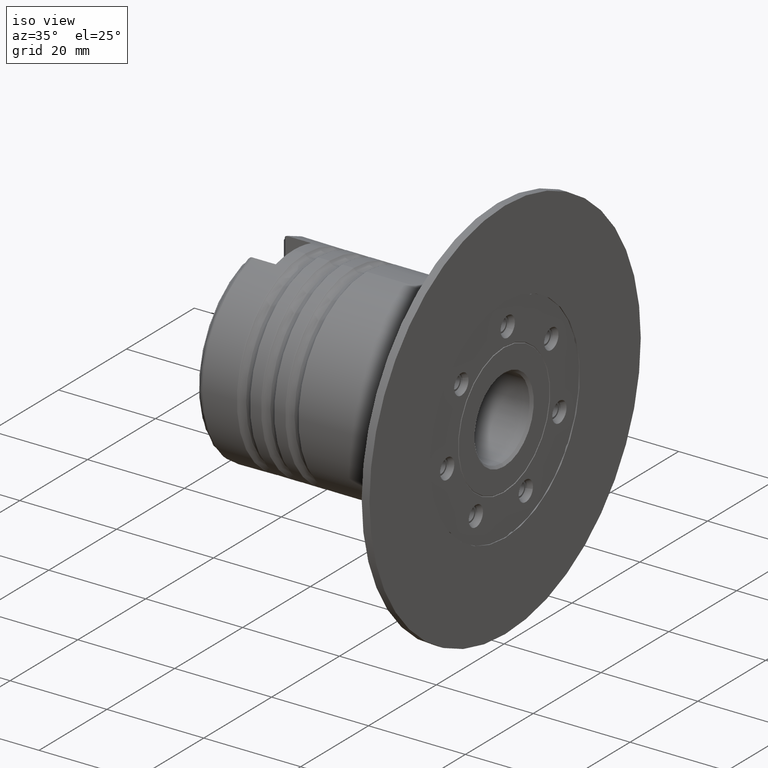
[diagram: clean part render]
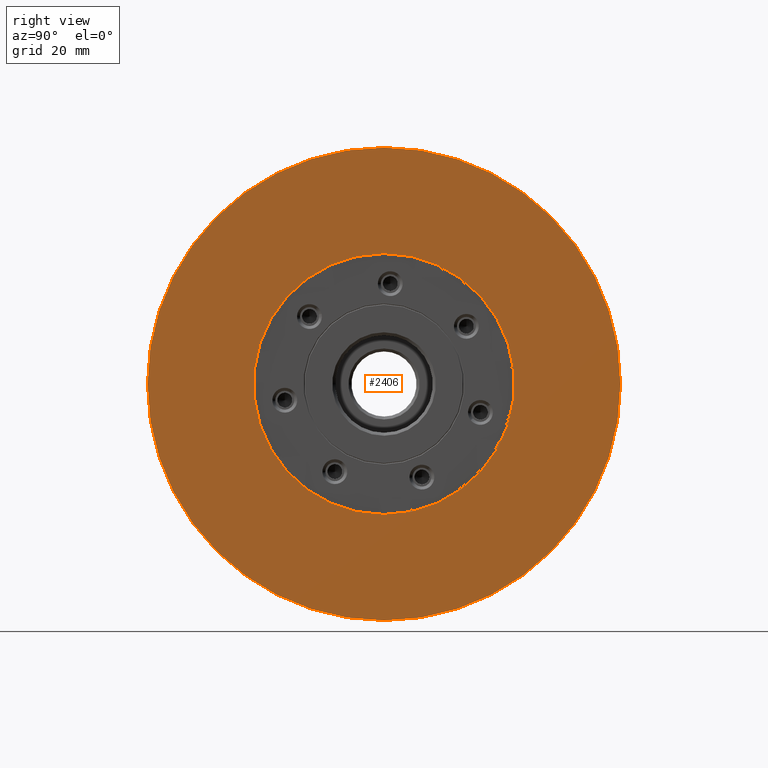
[diagram: tour spotlight — one face highlighted and labeled with its STEP entity id]
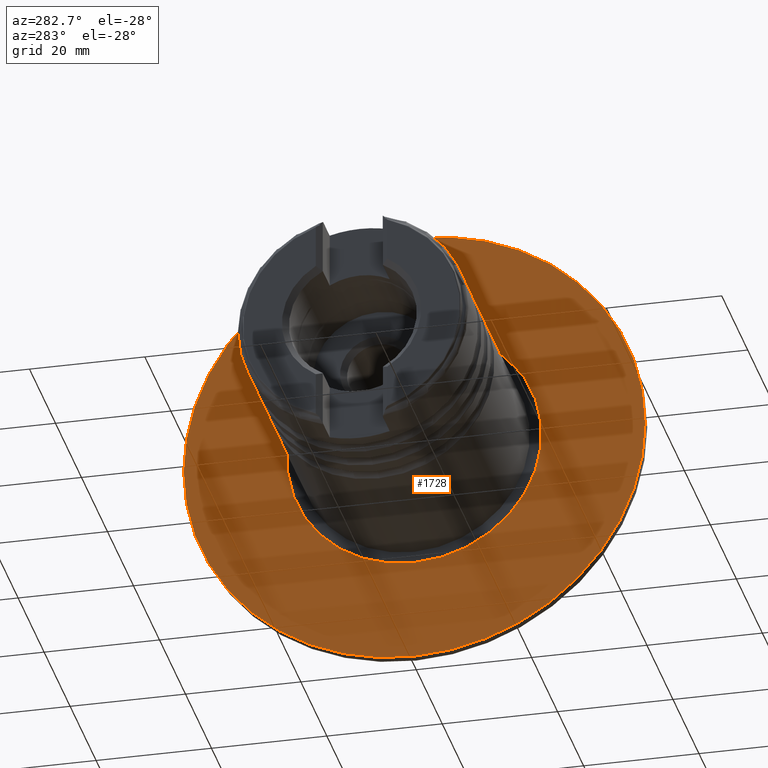
[diagram: tour spotlight — one face highlighted and labeled with its STEP entity id]
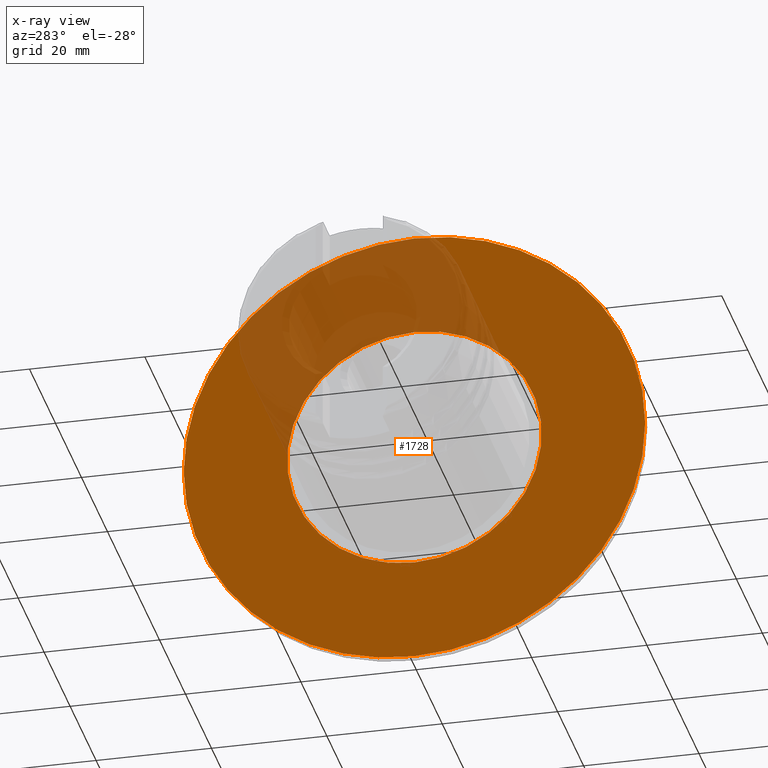
[diagram: x-ray of the same camera — body ghosted, this tour face saturated]
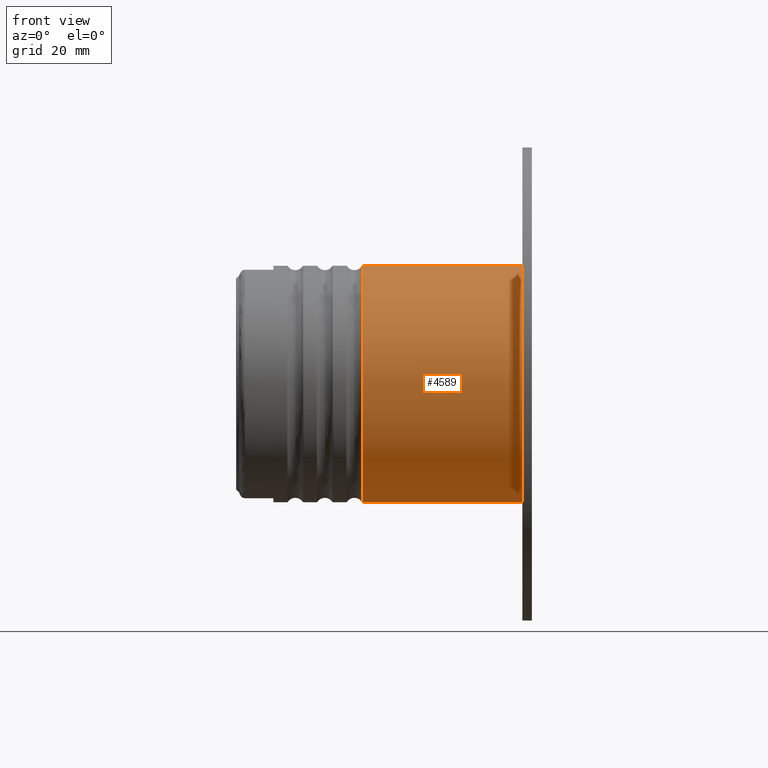
[diagram: tour spotlight — one face highlighted and labeled with its STEP entity id]
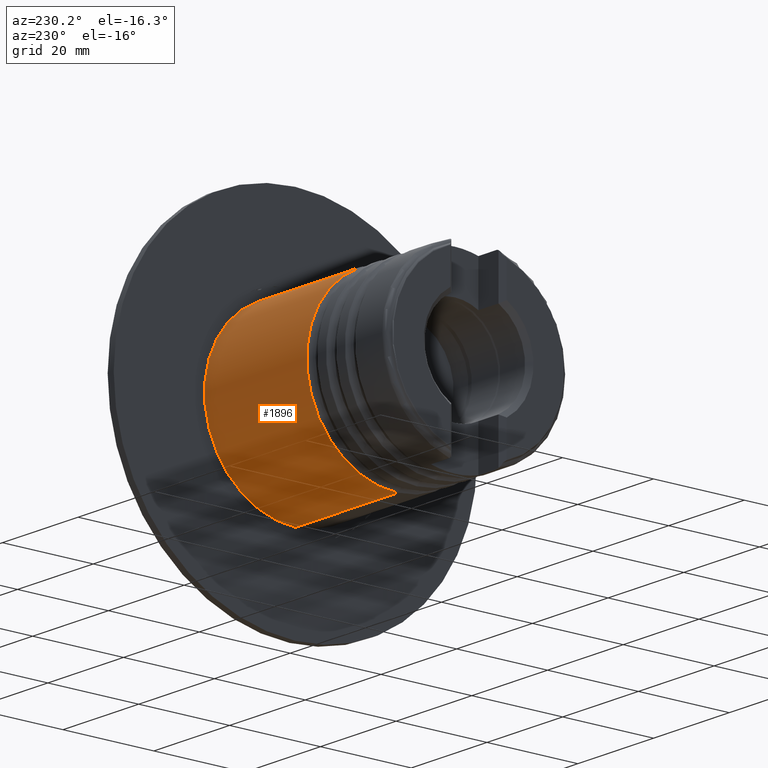
[diagram: tour spotlight — one face highlighted and labeled with its STEP entity id]
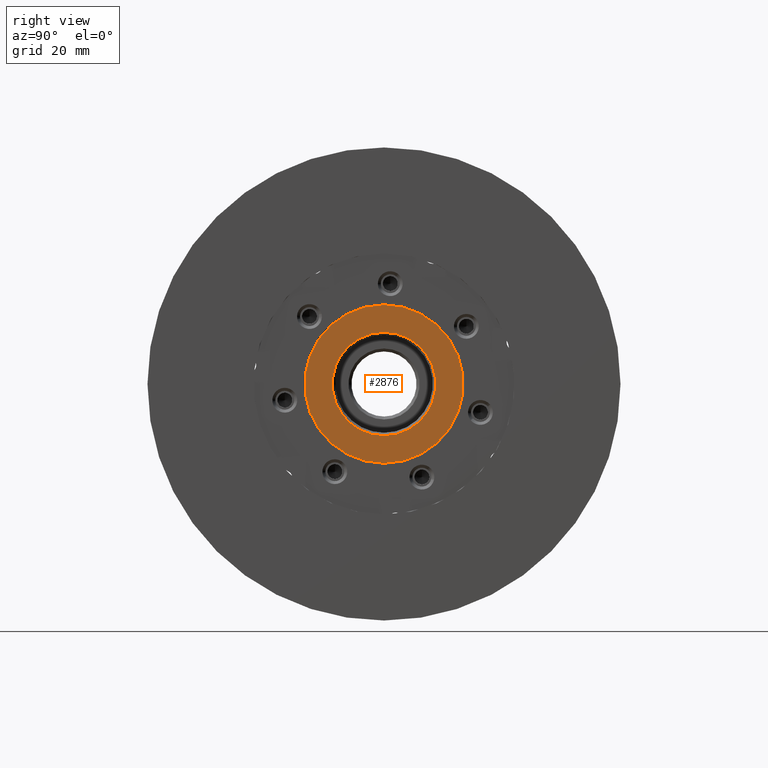
[diagram: tour spotlight — one face highlighted and labeled with its STEP entity id]
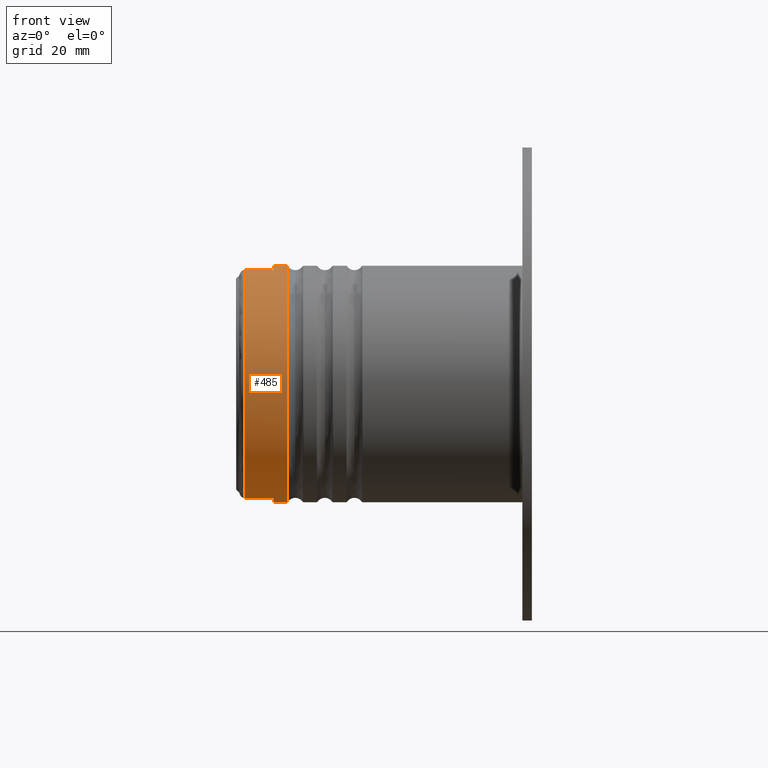
[diagram: tour spotlight — one face highlighted and labeled with its STEP entity id]
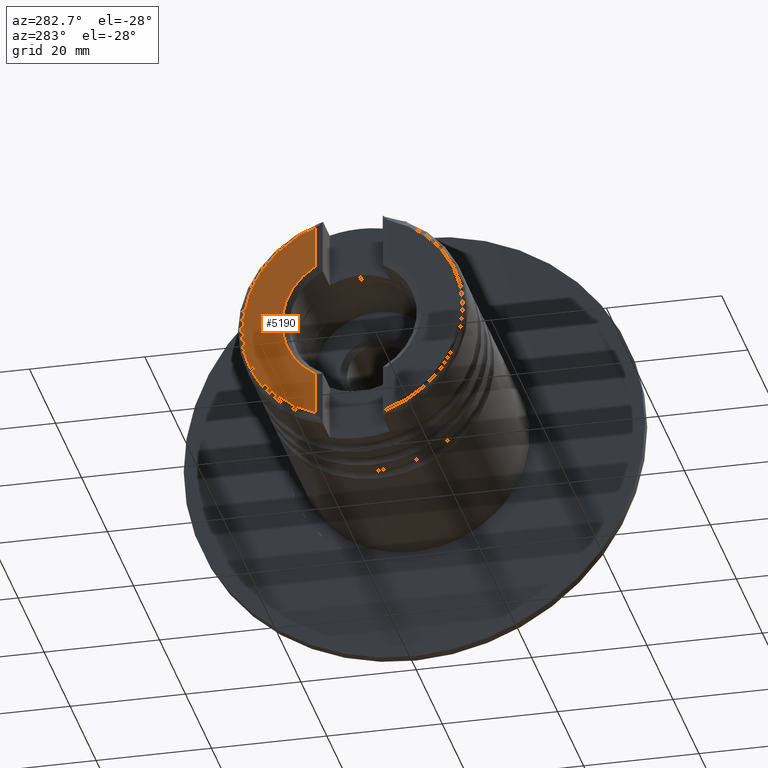
[diagram: tour spotlight — one face highlighted and labeled with its STEP entity id]
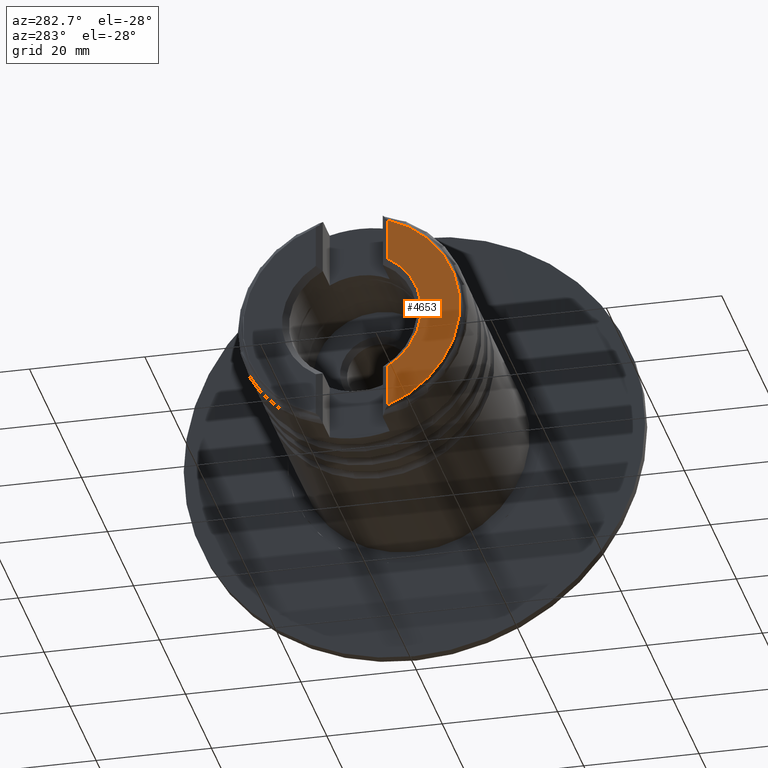
[diagram: tour spotlight — one face highlighted and labeled with its STEP entity id]
A machine part: a face-by-face anatomy tour. The part has 167 B-rep faces; the first image is the clean iso view, then the 8 largest visible faces are spotlighted one at a time (largest first), each with its STEP entity span.

Face 1 — right view, entity #2406. In plain terms, the highlighted planar face has unit normal (-1, 0, 0).
Definition (entity closure, byte-faithful):
#5 = DIRECTION ( 'NONE',  ( 1.000000000000000000, -0.0000000000000000000, -0.0000000000000000000 ) ) ;
#128 = DIRECTION ( 'NONE',  ( 1.000000000000000000, -0.0000000000000000000, -0.0000000000000000000 ) ) ;
#264 = CARTESIAN_POINT ( 'NONE',  ( 0.2000513399999931385, -40.00000000000000000, 0.0000000000000000000 ) ) ;
#310 = CARTESIAN_POINT ( 'NONE',  ( 0.2000513399999931385, 4.898587196589413026E-15, 40.00000000000000000 ) ) ;
#384 = DIRECTION ( 'NONE',  ( 1.000000000000000000, -0.0000000000000000000, -0.0000000000000000000 ) ) ;
#488 = CARTESIAN_POINT ( 'NONE',  ( 0.2000513399999931385, 0.0000000000000000000, -22.05936522491092688 ) ) ;
#514 = CIRCLE ( 'NONE', #913, 40.00000000000000000 ) ;
#547 = VERTEX_POINT ( 'NONE', #2277 ) ;
#620 = DIRECTION ( 'NONE',  ( 0.0000000000000000000, 0.0000000000000000000, -1.000000000000000000 ) ) ;
#698 = AXIS2_PLACEMENT_3D ( 'NONE', #264, #4040, #4481 ) ;
#819 = EDGE_CURVE ( 'NONE', #5009, #547, #1317, .T. ) ;
#913 = AXIS2_PLACEMENT_3D ( 'NONE', #2948, #5, #2926 ) ;
#1317 = CIRCLE ( 'NONE', #4471, 22.05936522491092688 ) ;
#1558 = AXIS2_PLACEMENT_3D ( 'NONE', #3105, #3932, #620 ) ;
#1891 = EDGE_CURVE ( 'NONE', #4624, #4226, #514, .T. ) ;
#1940 = FACE_BOUND ( 'NONE', #2709, .T. ) ;
#2098 = AXIS2_PLACEMENT_3D ( 'NONE', #2881, #384, #2443 ) ;
#2154 = PLANE ( 'NONE',  #698 ) ;
#2277 = CARTESIAN_POINT ( 'NONE',  ( 0.2000513399999931385, 2.701493101390960053E-15, 22.05936522491092688 ) ) ;
#2406 = ADVANCED_FACE ( 'NONE', ( #1940, #4847 ), #2154, .F. ) ;
#2443 = DIRECTION ( 'NONE',  ( 0.0000000000000000000, 0.0000000000000000000, -1.000000000000000000 ) ) ;
#2709 = EDGE_LOOP ( 'NONE', ( #2965, #4092 ) ) ;
#2881 = CARTESIAN_POINT ( 'NONE',  ( 0.2000513399999931385, 0.0000000000000000000, 0.0000000000000000000 ) ) ;
#2926 = DIRECTION ( 'NONE',  ( 0.0000000000000000000, 0.0000000000000000000, -1.000000000000000000 ) ) ;
#2948 = CARTESIAN_POINT ( 'NONE',  ( 0.2000513399999931385, 0.0000000000000000000, 0.0000000000000000000 ) ) ;
#2965 = ORIENTED_EDGE ( 'NONE', *, *, #819, .F. ) ;
#3048 = DIRECTION ( 'NONE',  ( 0.0000000000000000000, 0.0000000000000000000, -1.000000000000000000 ) ) ;
#3105 = CARTESIAN_POINT ( 'NONE',  ( 0.2000513399999931385, 0.0000000000000000000, 0.0000000000000000000 ) ) ;
#3255 = ORIENTED_EDGE ( 'NONE', *, *, #4002, .T. ) ;
#3379 = EDGE_LOOP ( 'NONE', ( #5006, #3255 ) ) ;
#3422 = CIRCLE ( 'NONE', #1558, 40.00000000000000000 ) ;
#3537 = CARTESIAN_POINT ( 'NONE',  ( 0.2000513399999931385, 0.0000000000000000000, 0.0000000000000000000 ) ) ;
#3552 = EDGE_CURVE ( 'NONE', #547, #5009, #4360, .T. ) ;
#3932 = DIRECTION ( 'NONE',  ( 1.000000000000000000, -0.0000000000000000000, -0.0000000000000000000 ) ) ;
#4002 = EDGE_CURVE ( 'NONE', #4226, #4624, #3422, .T. ) ;
#4040 = DIRECTION ( 'NONE',  ( -1.000000000000000000, 0.0000000000000000000, 0.0000000000000000000 ) ) ;
#4092 = ORIENTED_EDGE ( 'NONE', *, *, #3552, .F. ) ;
#4226 = VERTEX_POINT ( 'NONE', #310 ) ;
#4360 = CIRCLE ( 'NONE', #2098, 22.05936522491092688 ) ;
#4471 = AXIS2_PLACEMENT_3D ( 'NONE', #3537, #128, #3048 ) ;
#4481 = DIRECTION ( 'NONE',  ( 0.0000000000000000000, 0.0000000000000000000, 1.000000000000000000 ) ) ;
#4624 = VERTEX_POINT ( 'NONE', #4795 ) ;
#4795 = CARTESIAN_POINT ( 'NONE',  ( 0.2000513399999931385, 0.0000000000000000000, -40.00000000000000000 ) ) ;
#4847 = FACE_OUTER_BOUND ( 'NONE', #3379, .T. ) ;
#5006 = ORIENTED_EDGE ( 'NONE', *, *, #1891, .T. ) ;
#5009 = VERTEX_POINT ( 'NONE', #488 ) ;

Face 2 — auxiliary view, entity #1728. An x-ray twin of the same camera follows (body ghosted, this face saturated) — the face is partly hidden behind the body. In plain terms, the highlighted planar face has unit normal (1, 0, 0).
Definition (entity closure, byte-faithful):
#188 = AXIS2_PLACEMENT_3D ( 'NONE', #2789, #5372, #3730 ) ;
#197 = VERTEX_POINT ( 'NONE', #3235 ) ;
#261 = CARTESIAN_POINT ( 'NONE',  ( -1.399948660000007505, 2.701493101390960053E-15, 22.05936522491092688 ) ) ;
#344 = EDGE_CURVE ( 'NONE', #197, #4941, #3288, .T. ) ;
#462 = CARTESIAN_POINT ( 'NONE',  ( -1.399948660000006173, -22.05936522491092688, 0.0000000000000000000 ) ) ;
#589 = FACE_OUTER_BOUND ( 'NONE', #5008, .T. ) ;
#666 = CARTESIAN_POINT ( 'NONE',  ( -1.399948660000004175, 0.0000000000000000000, 0.0000000000000000000 ) ) ;
#1048 = FACE_BOUND ( 'NONE', #5270, .T. ) ;
#1244 = PLANE ( 'NONE',  #4949 ) ;
#1248 = DIRECTION ( 'NONE',  ( 0.0000000000000000000, 0.0000000000000000000, -1.000000000000000000 ) ) ;
#1450 = AXIS2_PLACEMENT_3D ( 'NONE', #3488, #1823, #3122 ) ;
#1534 = EDGE_CURVE ( 'NONE', #3066, #3116, #5371, .T. ) ;
#1728 = ADVANCED_FACE ( 'NONE', ( #589, #1048 ), #1244, .F. ) ;
#1823 = DIRECTION ( 'NONE',  ( 1.000000000000000000, -0.0000000000000000000, -0.0000000000000000000 ) ) ;
#2374 = AXIS2_PLACEMENT_3D ( 'NONE', #666, #3891, #4162 ) ;
#2789 = CARTESIAN_POINT ( 'NONE',  ( -1.399948660000007505, 0.0000000000000000000, 0.0000000000000000000 ) ) ;
#2913 = CARTESIAN_POINT ( 'NONE',  ( -1.399948660000007505, 0.0000000000000000000, -22.05936522491092688 ) ) ;
#2915 = CIRCLE ( 'NONE', #188, 22.05936522491092688 ) ;
#3066 = VERTEX_POINT ( 'NONE', #261 ) ;
#3116 = VERTEX_POINT ( 'NONE', #2913 ) ;
#3122 = DIRECTION ( 'NONE',  ( 0.0000000000000000000, 0.0000000000000000000, -1.000000000000000000 ) ) ;
#3235 = CARTESIAN_POINT ( 'NONE',  ( -1.399948660000004175, 0.0000000000000000000, -40.00000000000000000 ) ) ;
#3288 = CIRCLE ( 'NONE', #3850, 40.00000000000000000 ) ;
#3488 = CARTESIAN_POINT ( 'NONE',  ( -1.399948660000007505, 0.0000000000000000000, 0.0000000000000000000 ) ) ;
#3621 = EDGE_CURVE ( 'NONE', #4941, #197, #4982, .T. ) ;
#3656 = ORIENTED_EDGE ( 'NONE', *, *, #4237, .T. ) ;
#3700 = ORIENTED_EDGE ( 'NONE', *, *, #1534, .T. ) ;
#3730 = DIRECTION ( 'NONE',  ( 0.0000000000000000000, 0.0000000000000000000, -1.000000000000000000 ) ) ;
#3827 = CARTESIAN_POINT ( 'NONE',  ( -1.399948660000004175, 0.0000000000000000000, 0.0000000000000000000 ) ) ;
#3850 = AXIS2_PLACEMENT_3D ( 'NONE', #3827, #5083, #1248 ) ;
#3872 = ORIENTED_EDGE ( 'NONE', *, *, #3621, .F. ) ;
#3891 = DIRECTION ( 'NONE',  ( 1.000000000000000000, -0.0000000000000000000, -0.0000000000000000000 ) ) ;
#4162 = DIRECTION ( 'NONE',  ( 0.0000000000000000000, 0.0000000000000000000, -1.000000000000000000 ) ) ;
#4237 = EDGE_CURVE ( 'NONE', #3116, #3066, #2915, .T. ) ;
#4487 = ORIENTED_EDGE ( 'NONE', *, *, #344, .F. ) ;
#4597 = DIRECTION ( 'NONE',  ( 1.000000000000000000, 0.0000000000000000000, -0.0000000000000000000 ) ) ;
#4616 = DIRECTION ( 'NONE',  ( -0.0000000000000000000, 0.0000000000000000000, -1.000000000000000000 ) ) ;
#4639 = CARTESIAN_POINT ( 'NONE',  ( -1.399948660000004175, 4.898587196589413026E-15, 40.00000000000000000 ) ) ;
#4941 = VERTEX_POINT ( 'NONE', #4639 ) ;
#4949 = AXIS2_PLACEMENT_3D ( 'NONE', #462, #4597, #4616 ) ;
#4982 = CIRCLE ( 'NONE', #2374, 40.00000000000000000 ) ;
#5008 = EDGE_LOOP ( 'NONE', ( #4487, #3872 ) ) ;
#5083 = DIRECTION ( 'NONE',  ( 1.000000000000000000, -0.0000000000000000000, -0.0000000000000000000 ) ) ;
#5270 = EDGE_LOOP ( 'NONE', ( #3656, #3700 ) ) ;
#5371 = CIRCLE ( 'NONE', #1450, 22.05936522491092688 ) ;
#5372 = DIRECTION ( 'NONE',  ( 1.000000000000000000, -0.0000000000000000000, -0.0000000000000000000 ) ) ;

Face 3 — front view, entity #4589. In plain terms, the highlighted cylindrical surface (partial cylindrical patch) has radius 20 mm, axis along (1, 0, 0).
Definition (entity closure, byte-faithful):
#563 = CARTESIAN_POINT ( 'NONE',  ( -1.399999999999999023, 2.449293598294706513E-15, 20.00000000000000000 ) ) ;
#660 = VECTOR ( 'NONE', #4197, 1000.000000000000000 ) ;
#711 = AXIS2_PLACEMENT_3D ( 'NONE', #3035, #4725, #5174 ) ;
#764 = CIRCLE ( 'NONE', #3651, 20.00000000000000000 ) ;
#813 = VERTEX_POINT ( 'NONE', #563 ) ;
#850 = LINE ( 'NONE', #4456, #660 ) ;
#882 = VERTEX_POINT ( 'NONE', #4389 ) ;
#973 = CARTESIAN_POINT ( 'NONE',  ( -1.399999999999999023, 0.0000000000000000000, 0.0000000000000000000 ) ) ;
#1053 = DIRECTION ( 'NONE',  ( 0.0000000000000000000, 0.0000000000000000000, -1.000000000000000000 ) ) ;
#1058 = LINE ( 'NONE', #5407, #2916 ) ;
#1232 = EDGE_CURVE ( 'NONE', #1546, #813, #1058, .T. ) ;
#1402 = VERTEX_POINT ( 'NONE', #4301 ) ;
#1429 = CIRCLE ( 'NONE', #711, 19.99999999999999645 ) ;
#1515 = ORIENTED_EDGE ( 'NONE', *, *, #5039, .F. ) ;
#1546 = VERTEX_POINT ( 'NONE', #3912 ) ;
#1784 = ORIENTED_EDGE ( 'NONE', *, *, #5429, .F. ) ;
#1889 = DIRECTION ( 'NONE',  ( 1.000000000000000000, -0.0000000000000000000, -0.0000000000000000000 ) ) ;
#1991 = DIRECTION ( 'NONE',  ( 1.000000000000000000, -0.0000000000000000000, -0.0000000000000000000 ) ) ;
#2916 = VECTOR ( 'NONE', #1991, 1000.000000000000000 ) ;
#3035 = CARTESIAN_POINT ( 'NONE',  ( -28.39016144201283964, 0.0000000000000000000, 0.0000000000000000000 ) ) ;
#3054 = DIRECTION ( 'NONE',  ( 0.0000000000000000000, 0.0000000000000000000, -1.000000000000000000 ) ) ;
#3078 = DIRECTION ( 'NONE',  ( 1.000000000000000000, -0.0000000000000000000, -0.0000000000000000000 ) ) ;
#3142 = FACE_OUTER_BOUND ( 'NONE', #5137, .T. ) ;
#3231 = ORIENTED_EDGE ( 'NONE', *, *, #1232, .F. ) ;
#3651 = AXIS2_PLACEMENT_3D ( 'NONE', #973, #3078, #3054 ) ;
#3675 = EDGE_CURVE ( 'NONE', #882, #1402, #850, .T. ) ;
#3912 = CARTESIAN_POINT ( 'NONE',  ( -28.39016144201283964, 2.449293598294706119E-15, 19.99999999999999645 ) ) ;
#4052 = AXIS2_PLACEMENT_3D ( 'NONE', #4433, #1889, #1053 ) ;
#4197 = DIRECTION ( 'NONE',  ( 1.000000000000000000, -0.0000000000000000000, -0.0000000000000000000 ) ) ;
#4238 = ORIENTED_EDGE ( 'NONE', *, *, #3675, .T. ) ;
#4301 = CARTESIAN_POINT ( 'NONE',  ( -1.399999999999999023, 0.0000000000000000000, -20.00000000000000000 ) ) ;
#4389 = CARTESIAN_POINT ( 'NONE',  ( -28.39016144201283964, 0.0000000000000000000, -19.99999999999999645 ) ) ;
#4433 = CARTESIAN_POINT ( 'NONE',  ( 0.0000000000000000000, 0.0000000000000000000, 0.0000000000000000000 ) ) ;
#4456 = CARTESIAN_POINT ( 'NONE',  ( 0.0000000000000000000, 0.0000000000000000000, -19.99999999999999645 ) ) ;
#4589 = ADVANCED_FACE ( 'NONE', ( #3142 ), #5176, .T. ) ;
#4725 = DIRECTION ( 'NONE',  ( -1.000000000000000000, -0.0000000000000000000, -0.0000000000000000000 ) ) ;
#5039 = EDGE_CURVE ( 'NONE', #813, #1402, #764, .T. ) ;
#5137 = EDGE_LOOP ( 'NONE', ( #3231, #1784, #4238, #1515 ) ) ;
#5174 = DIRECTION ( 'NONE',  ( 0.0000000000000000000, 0.0000000000000000000, 1.000000000000000000 ) ) ;
#5176 = CYLINDRICAL_SURFACE ( 'NONE', #4052, 19.99999999999999645 ) ;
#5407 = CARTESIAN_POINT ( 'NONE',  ( 0.0000000000000000000, 2.449293598294706119E-15, 19.99999999999999645 ) ) ;
#5429 = EDGE_CURVE ( 'NONE', #882, #1546, #1429, .T. ) ;

Face 4 — auxiliary view, entity #1896. In plain terms, the highlighted cylindrical surface (partial cylindrical patch) has radius 20 mm, axis along (1, 0, 0).
Definition (entity closure, byte-faithful):
#209 = ORIENTED_EDGE ( 'NONE', *, *, #3331, .F. ) ;
#313 = DIRECTION ( 'NONE',  ( 0.0000000000000000000, 0.0000000000000000000, -1.000000000000000000 ) ) ;
#338 = DIRECTION ( 'NONE',  ( -1.000000000000000000, -0.0000000000000000000, -0.0000000000000000000 ) ) ;
#563 = CARTESIAN_POINT ( 'NONE',  ( -1.399999999999999023, 2.449293598294706513E-15, 20.00000000000000000 ) ) ;
#615 = ORIENTED_EDGE ( 'NONE', *, *, #2706, .F. ) ;
#660 = VECTOR ( 'NONE', #4197, 1000.000000000000000 ) ;
#773 = DIRECTION ( 'NONE',  ( 0.0000000000000000000, 0.0000000000000000000, 1.000000000000000000 ) ) ;
#813 = VERTEX_POINT ( 'NONE', #563 ) ;
#850 = LINE ( 'NONE', #4456, #660 ) ;
#882 = VERTEX_POINT ( 'NONE', #4389 ) ;
#899 = CIRCLE ( 'NONE', #3808, 20.00000000000000000 ) ;
#969 = ORIENTED_EDGE ( 'NONE', *, *, #1232, .T. ) ;
#1058 = LINE ( 'NONE', #5407, #2916 ) ;
#1155 = CARTESIAN_POINT ( 'NONE',  ( -1.399999999999999023, 0.0000000000000000000, 0.0000000000000000000 ) ) ;
#1232 = EDGE_CURVE ( 'NONE', #1546, #813, #1058, .T. ) ;
#1309 = DIRECTION ( 'NONE',  ( 1.000000000000000000, -0.0000000000000000000, -0.0000000000000000000 ) ) ;
#1402 = VERTEX_POINT ( 'NONE', #4301 ) ;
#1546 = VERTEX_POINT ( 'NONE', #3912 ) ;
#1589 = CIRCLE ( 'NONE', #2400, 19.99999999999999645 ) ;
#1680 = CARTESIAN_POINT ( 'NONE',  ( 0.0000000000000000000, 0.0000000000000000000, 0.0000000000000000000 ) ) ;
#1896 = ADVANCED_FACE ( 'NONE', ( #4517 ), #4970, .T. ) ;
#1991 = DIRECTION ( 'NONE',  ( 1.000000000000000000, -0.0000000000000000000, -0.0000000000000000000 ) ) ;
#2059 = DIRECTION ( 'NONE',  ( 0.0000000000000000000, 0.0000000000000000000, -1.000000000000000000 ) ) ;
#2364 = DIRECTION ( 'NONE',  ( 1.000000000000000000, -0.0000000000000000000, -0.0000000000000000000 ) ) ;
#2400 = AXIS2_PLACEMENT_3D ( 'NONE', #4110, #338, #773 ) ;
#2706 = EDGE_CURVE ( 'NONE', #1402, #813, #899, .T. ) ;
#2916 = VECTOR ( 'NONE', #1991, 1000.000000000000000 ) ;
#2959 = EDGE_LOOP ( 'NONE', ( #209, #969, #615, #5167 ) ) ;
#3331 = EDGE_CURVE ( 'NONE', #1546, #882, #1589, .T. ) ;
#3661 = AXIS2_PLACEMENT_3D ( 'NONE', #1680, #1309, #2059 ) ;
#3675 = EDGE_CURVE ( 'NONE', #882, #1402, #850, .T. ) ;
#3808 = AXIS2_PLACEMENT_3D ( 'NONE', #1155, #2364, #313 ) ;
#3912 = CARTESIAN_POINT ( 'NONE',  ( -28.39016144201283964, 2.449293598294706119E-15, 19.99999999999999645 ) ) ;
#4110 = CARTESIAN_POINT ( 'NONE',  ( -28.39016144201283964, 0.0000000000000000000, 0.0000000000000000000 ) ) ;
#4197 = DIRECTION ( 'NONE',  ( 1.000000000000000000, -0.0000000000000000000, -0.0000000000000000000 ) ) ;
#4301 = CARTESIAN_POINT ( 'NONE',  ( -1.399999999999999023, 0.0000000000000000000, -20.00000000000000000 ) ) ;
#4389 = CARTESIAN_POINT ( 'NONE',  ( -28.39016144201283964, 0.0000000000000000000, -19.99999999999999645 ) ) ;
#4456 = CARTESIAN_POINT ( 'NONE',  ( 0.0000000000000000000, 0.0000000000000000000, -19.99999999999999645 ) ) ;
#4517 = FACE_OUTER_BOUND ( 'NONE', #2959, .T. ) ;
#4970 = CYLINDRICAL_SURFACE ( 'NONE', #3661, 19.99999999999999645 ) ;
#5167 = ORIENTED_EDGE ( 'NONE', *, *, #3675, .F. ) ;
#5407 = CARTESIAN_POINT ( 'NONE',  ( 0.0000000000000000000, 2.449293598294706119E-15, 19.99999999999999645 ) ) ;

Face 5 — right view, entity #2876. In plain terms, the highlighted planar face has unit normal (1, 0, 0).
Definition (entity closure, byte-faithful):
#155 = VERTEX_POINT ( 'NONE', #2170 ) ;
#270 = AXIS2_PLACEMENT_3D ( 'NONE', #4778, #2247, #5189 ) ;
#367 = CARTESIAN_POINT ( 'NONE',  ( 0.0000000000000000000, 0.0000000000000000000, 0.0000000000000000000 ) ) ;
#378 = DIRECTION ( 'NONE',  ( 1.000000000000000000, -0.0000000000000000000, -0.0000000000000000000 ) ) ;
#495 = FACE_OUTER_BOUND ( 'NONE', #4215, .T. ) ;
#662 = EDGE_CURVE ( 'NONE', #2611, #871, #2678, .T. ) ;
#793 = DIRECTION ( 'NONE',  ( 0.0000000000000000000, 0.0000000000000000000, -1.000000000000000000 ) ) ;
#871 = VERTEX_POINT ( 'NONE', #4769 ) ;
#1262 = CIRCLE ( 'NONE', #270, 13.39999999999999858 ) ;
#1306 = EDGE_CURVE ( 'NONE', #1865, #155, #5378, .T. ) ;
#1636 = EDGE_CURVE ( 'NONE', #871, #2611, #5447, .T. ) ;
#1672 = PLANE ( 'NONE',  #5460 ) ;
#1695 = DIRECTION ( 'NONE',  ( 0.0000000000000000000, 0.0000000000000000000, -1.000000000000000000 ) ) ;
#1862 = AXIS2_PLACEMENT_3D ( 'NONE', #3148, #2751, #3588 ) ;
#1865 = VERTEX_POINT ( 'NONE', #2449 ) ;
#2079 = DIRECTION ( 'NONE',  ( 1.000000000000000000, -0.0000000000000000000, -0.0000000000000000000 ) ) ;
#2129 = DIRECTION ( 'NONE',  ( 1.000000000000000000, 0.0000000000000000000, -0.0000000000000000000 ) ) ;
#2170 = CARTESIAN_POINT ( 'NONE',  ( 0.0000000000000000000, 1.647149944853189991E-15, -13.39999999999999858 ) ) ;
#2247 = DIRECTION ( 'NONE',  ( 1.000000000000000000, -0.0000000000000000000, -0.0000000000000000000 ) ) ;
#2262 = FACE_BOUND ( 'NONE', #4945, .T. ) ;
#2449 = CARTESIAN_POINT ( 'NONE',  ( 0.0000000000000000000, 0.0000000000000000000, 13.39999999999999858 ) ) ;
#2611 = VERTEX_POINT ( 'NONE', #3765 ) ;
#2678 = CIRCLE ( 'NONE', #4922, 8.750000000000000000 ) ;
#2751 = DIRECTION ( 'NONE',  ( 1.000000000000000000, -0.0000000000000000000, -0.0000000000000000000 ) ) ;
#2835 = CARTESIAN_POINT ( 'NONE',  ( 0.0000000000000000000, 0.0000000000000000000, 0.0000000000000000000 ) ) ;
#2858 = DIRECTION ( 'NONE',  ( -0.0000000000000000000, 0.0000000000000000000, -1.000000000000000000 ) ) ;
#2876 = ADVANCED_FACE ( 'NONE', ( #2262, #495 ), #1672, .T. ) ;
#3148 = CARTESIAN_POINT ( 'NONE',  ( 0.0000000000000000000, 0.0000000000000000000, 0.0000000000000000000 ) ) ;
#3218 = EDGE_CURVE ( 'NONE', #155, #1865, #1262, .T. ) ;
#3387 = ORIENTED_EDGE ( 'NONE', *, *, #1306, .T. ) ;
#3507 = AXIS2_PLACEMENT_3D ( 'NONE', #4190, #2079, #1695 ) ;
#3588 = DIRECTION ( 'NONE',  ( 0.0000000000000000000, 0.0000000000000000000, -1.000000000000000000 ) ) ;
#3603 = ORIENTED_EDGE ( 'NONE', *, *, #1636, .F. ) ;
#3765 = CARTESIAN_POINT ( 'NONE',  ( 0.0000000000000000000, 0.0000000000000000000, -8.750000000000000000 ) ) ;
#4190 = CARTESIAN_POINT ( 'NONE',  ( 0.0000000000000000000, 0.0000000000000000000, 0.0000000000000000000 ) ) ;
#4215 = EDGE_LOOP ( 'NONE', ( #3387, #4307 ) ) ;
#4307 = ORIENTED_EDGE ( 'NONE', *, *, #3218, .T. ) ;
#4769 = CARTESIAN_POINT ( 'NONE',  ( 0.0000000000000000000, 1.071565949253934124E-15, 8.750000000000000000 ) ) ;
#4778 = CARTESIAN_POINT ( 'NONE',  ( 0.0000000000000000000, 0.0000000000000000000, 0.0000000000000000000 ) ) ;
#4811 = ORIENTED_EDGE ( 'NONE', *, *, #662, .F. ) ;
#4922 = AXIS2_PLACEMENT_3D ( 'NONE', #2835, #378, #793 ) ;
#4945 = EDGE_LOOP ( 'NONE', ( #4811, #3603 ) ) ;
#5189 = DIRECTION ( 'NONE',  ( 0.0000000000000000000, 0.0000000000000000000, -1.000000000000000000 ) ) ;
#5378 = CIRCLE ( 'NONE', #3507, 13.39999999999999858 ) ;
#5447 = CIRCLE ( 'NONE', #1862, 8.750000000000000000 ) ;
#5460 = AXIS2_PLACEMENT_3D ( 'NONE', #367, #2129, #2858 ) ;

Face 6 — front view, entity #485. In plain terms, the highlighted cylindrical surface (partial cylindrical patch) has radius 20 mm, axis along (1, 0, 0).
Definition (entity closure, byte-faithful):
#23 = CARTESIAN_POINT ( 'NONE',  ( 1.701992844354598729E-15, -5.199999999999992184, 19.31217232731729538 ) ) ;
#105 = CARTESIAN_POINT ( 'NONE',  ( -43.49994866000000115, -5.200000000000005507, 19.31217232731729538 ) ) ;
#215 = EDGE_CURVE ( 'NONE', #2950, #2689, #1590, .T. ) ;
#284 = CARTESIAN_POINT ( 'NONE',  ( -43.49994866000000115, 2.449293598294706119E-15, 19.99999999999999645 ) ) ;
#352 = EDGE_CURVE ( 'NONE', #1974, #4608, #4991, .T. ) ;
#482 = EDGE_CURVE ( 'NONE', #4490, #4486, #5192, .T. ) ;
#485 = ADVANCED_FACE ( 'NONE', ( #924 ), #5384, .T. ) ;
#494 = CARTESIAN_POINT ( 'NONE',  ( -43.49994866000000115, 0.0000000000000000000, -19.99999999999999645 ) ) ;
#549 = CARTESIAN_POINT ( 'NONE',  ( 0.0000000000000000000, 0.0000000000000000000, 0.0000000000000000000 ) ) ;
#600 = CIRCLE ( 'NONE', #3993, 19.99999999999998934 ) ;
#732 = DIRECTION ( 'NONE',  ( -1.000000000000000000, 0.0000000000000000000, -0.0000000000000000000 ) ) ;
#904 = CARTESIAN_POINT ( 'NONE',  ( -43.49994866000000115, -5.200000000000005507, -19.31217232731729538 ) ) ;
#924 = FACE_OUTER_BOUND ( 'NONE', #5273, .T. ) ;
#960 = CARTESIAN_POINT ( 'NONE',  ( 0.0000000000000000000, 2.449293598294706119E-15, 19.99999999999999645 ) ) ;
#1059 = DIRECTION ( 'NONE',  ( 1.000000000000000000, -0.0000000000000000000, -0.0000000000000000000 ) ) ;
#1069 = VECTOR ( 'NONE', #5042, 1000.000000000000000 ) ;
#1093 = DIRECTION ( 'NONE',  ( 0.0000000000000000000, 0.0000000000000000000, -1.000000000000000000 ) ) ;
#1112 = EDGE_CURVE ( 'NONE', #4486, #4550, #1116, .T. ) ;
#1116 = CIRCLE ( 'NONE', #1803, 19.99999999999999289 ) ;
#1163 = DIRECTION ( 'NONE',  ( 0.0000000000000000000, 5.329070518200751394E-15, -1.000000000000000000 ) ) ;
#1293 = CARTESIAN_POINT ( 'NONE',  ( -48.29994866000000542, -5.199999999999992184, 19.31217232731729538 ) ) ;
#1297 = CIRCLE ( 'NONE', #3999, 19.99999999999999645 ) ;
#1327 = DIRECTION ( 'NONE',  ( 0.0000000000000000000, 0.0000000000000000000, -1.000000000000000000 ) ) ;
#1346 = CARTESIAN_POINT ( 'NONE',  ( -41.20973587798717119, 2.449293598294705724E-15, 19.99999999999999289 ) ) ;
#1536 = ORIENTED_EDGE ( 'NONE', *, *, #4135, .T. ) ;
#1590 = CIRCLE ( 'NONE', #2367, 19.99999999999999645 ) ;
#1659 = ORIENTED_EDGE ( 'NONE', *, *, #5285, .F. ) ;
#1673 = CARTESIAN_POINT ( 'NONE',  ( 1.701992844354598729E-15, -5.199999999999992184, -19.31217232731729538 ) ) ;
#1758 = CARTESIAN_POINT ( 'NONE',  ( 0.0000000000000000000, 0.0000000000000000000, -19.99999999999999645 ) ) ;
#1803 = AXIS2_PLACEMENT_3D ( 'NONE', #5133, #4342, #2637 ) ;
#1962 = EDGE_CURVE ( 'NONE', #2689, #4550, #2387, .T. ) ;
#1974 = VERTEX_POINT ( 'NONE', #904 ) ;
#1989 = LINE ( 'NONE', #23, #3791 ) ;
#2095 = AXIS2_PLACEMENT_3D ( 'NONE', #549, #4362, #4758 ) ;
#2367 = AXIS2_PLACEMENT_3D ( 'NONE', #3249, #732, #1163 ) ;
#2387 = LINE ( 'NONE', #960, #3071 ) ;
#2637 = DIRECTION ( 'NONE',  ( 0.0000000000000000000, 0.0000000000000000000, 1.000000000000000000 ) ) ;
#2641 = DIRECTION ( 'NONE',  ( 1.000000000000000000, -0.0000000000000000000, -0.0000000000000000000 ) ) ;
#2689 = VERTEX_POINT ( 'NONE', #284 ) ;
#2935 = EDGE_CURVE ( 'NONE', #3856, #2950, #1989, .T. ) ;
#2950 = VERTEX_POINT ( 'NONE', #105 ) ;
#3071 = VECTOR ( 'NONE', #4689, 1000.000000000000000 ) ;
#3096 = CARTESIAN_POINT ( 'NONE',  ( -48.29994866000000542, -5.199999999999992184, -19.31217232731729538 ) ) ;
#3249 = CARTESIAN_POINT ( 'NONE',  ( -43.49994866000000115, 0.0000000000000000000, 0.0000000000000000000 ) ) ;
#3289 = ORIENTED_EDGE ( 'NONE', *, *, #215, .F. ) ;
#3791 = VECTOR ( 'NONE', #4319, 1000.000000000000000 ) ;
#3793 = CARTESIAN_POINT ( 'NONE',  ( -43.49994866000000115, 0.0000000000000000000, 0.0000000000000000000 ) ) ;
#3856 = VERTEX_POINT ( 'NONE', #1293 ) ;
#3993 = AXIS2_PLACEMENT_3D ( 'NONE', #4042, #1059, #1093 ) ;
#3999 = AXIS2_PLACEMENT_3D ( 'NONE', #3793, #4230, #1327 ) ;
#4042 = CARTESIAN_POINT ( 'NONE',  ( -48.29994866000000542, 0.0000000000000000000, 0.0000000000000000000 ) ) ;
#4135 = EDGE_CURVE ( 'NONE', #3856, #4608, #600, .T. ) ;
#4207 = CARTESIAN_POINT ( 'NONE',  ( -41.20973587798717119, 0.0000000000000000000, -19.99999999999999289 ) ) ;
#4220 = ORIENTED_EDGE ( 'NONE', *, *, #352, .F. ) ;
#4230 = DIRECTION ( 'NONE',  ( -1.000000000000000000, 0.0000000000000000000, -0.0000000000000000000 ) ) ;
#4319 = DIRECTION ( 'NONE',  ( 1.000000000000000000, -0.0000000000000000000, -0.0000000000000000000 ) ) ;
#4342 = DIRECTION ( 'NONE',  ( -1.000000000000000000, -0.0000000000000000000, -0.0000000000000000000 ) ) ;
#4362 = DIRECTION ( 'NONE',  ( 1.000000000000000000, -0.0000000000000000000, -0.0000000000000000000 ) ) ;
#4486 = VERTEX_POINT ( 'NONE', #4207 ) ;
#4490 = VERTEX_POINT ( 'NONE', #494 ) ;
#4550 = VERTEX_POINT ( 'NONE', #1346 ) ;
#4570 = ORIENTED_EDGE ( 'NONE', *, *, #482, .T. ) ;
#4608 = VERTEX_POINT ( 'NONE', #3096 ) ;
#4689 = DIRECTION ( 'NONE',  ( 1.000000000000000000, -0.0000000000000000000, -0.0000000000000000000 ) ) ;
#4704 = ORIENTED_EDGE ( 'NONE', *, *, #2935, .F. ) ;
#4758 = DIRECTION ( 'NONE',  ( 0.0000000000000000000, 0.0000000000000000000, -1.000000000000000000 ) ) ;
#4991 = LINE ( 'NONE', #1673, #1069 ) ;
#5042 = DIRECTION ( 'NONE',  ( -1.000000000000000000, 0.0000000000000000000, 0.0000000000000000000 ) ) ;
#5079 = ORIENTED_EDGE ( 'NONE', *, *, #1962, .F. ) ;
#5133 = CARTESIAN_POINT ( 'NONE',  ( -41.20973587798717119, 0.0000000000000000000, 0.0000000000000000000 ) ) ;
#5192 = LINE ( 'NONE', #1758, #5463 ) ;
#5273 = EDGE_LOOP ( 'NONE', ( #5079, #3289, #4704, #1536, #4220, #1659, #4570, #5342 ) ) ;
#5285 = EDGE_CURVE ( 'NONE', #4490, #1974, #1297, .T. ) ;
#5342 = ORIENTED_EDGE ( 'NONE', *, *, #1112, .T. ) ;
#5384 = CYLINDRICAL_SURFACE ( 'NONE', #2095, 19.99999999999999645 ) ;
#5463 = VECTOR ( 'NONE', #2641, 1000.000000000000000 ) ;

Face 7 — auxiliary view, entity #5190. In plain terms, the highlighted planar face has unit normal (-1, 0, 0).
Definition (entity closure, byte-faithful):
#56 = ORIENTED_EDGE ( 'NONE', *, *, #2453, .T. ) ;
#115 = LINE ( 'NONE', #4365, #838 ) ;
#214 = VERTEX_POINT ( 'NONE', #3618 ) ;
#393 = CARTESIAN_POINT ( 'NONE',  ( -49.79994866000001252, 0.0000000000000000000, 0.0000000000000000000 ) ) ;
#760 = VECTOR ( 'NONE', #2269, 1000.000000000000000 ) ;
#838 = VECTOR ( 'NONE', #3573, 1000.000000000000000 ) ;
#1032 = AXIS2_PLACEMENT_3D ( 'NONE', #4636, #1295, #5078 ) ;
#1295 = DIRECTION ( 'NONE',  ( 1.000000000000000000, -0.0000000000000000000, -0.0000000000000000000 ) ) ;
#1624 = CARTESIAN_POINT ( 'NONE',  ( -49.79994866000001252, 18.78759070216158378, 0.0000000000000000000 ) ) ;
#1674 = AXIS2_PLACEMENT_3D ( 'NONE', #1624, #2430, #2847 ) ;
#1693 = DIRECTION ( 'NONE',  ( 0.0000000000000000000, 0.0000000000000000000, -1.000000000000000000 ) ) ;
#1736 = ORIENTED_EDGE ( 'NONE', *, *, #2762, .F. ) ;
#2260 = ORIENTED_EDGE ( 'NONE', *, *, #4634, .T. ) ;
#2269 = DIRECTION ( 'NONE',  ( -0.0000000000000000000, -0.0000000000000000000, 1.000000000000000000 ) ) ;
#2430 = DIRECTION ( 'NONE',  ( -1.000000000000000000, 0.0000000000000000000, 0.0000000000000000000 ) ) ;
#2453 = EDGE_CURVE ( 'NONE', #214, #4149, #4461, .T. ) ;
#2455 = CARTESIAN_POINT ( 'NONE',  ( -49.79994866000001252, 6.199999999999993960, -10.36173851243120403 ) ) ;
#2762 = EDGE_CURVE ( 'NONE', #3773, #4149, #3991, .T. ) ;
#2847 = DIRECTION ( 'NONE',  ( 0.0000000000000000000, 0.0000000000000000000, 1.000000000000000000 ) ) ;
#2873 = CARTESIAN_POINT ( 'NONE',  ( -49.79994866000001252, 6.199999999999993960, -17.73509414668941631 ) ) ;
#3008 = AXIS2_PLACEMENT_3D ( 'NONE', #393, #4188, #1693 ) ;
#3299 = VERTEX_POINT ( 'NONE', #2455 ) ;
#3351 = EDGE_CURVE ( 'NONE', #3299, #214, #3437, .T. ) ;
#3437 = CIRCLE ( 'NONE', #1032, 12.07499999999999751 ) ;
#3445 = EDGE_LOOP ( 'NONE', ( #56, #1736, #2260, #3705 ) ) ;
#3508 = CARTESIAN_POINT ( 'NONE',  ( -49.79994866000001252, 6.199999999999993960, -25.00000000000000000 ) ) ;
#3573 = DIRECTION ( 'NONE',  ( -0.0000000000000000000, -0.0000000000000000000, 1.000000000000000000 ) ) ;
#3618 = CARTESIAN_POINT ( 'NONE',  ( -49.79994866000001252, 6.199999999999993960, 10.36173851243120225 ) ) ;
#3705 = ORIENTED_EDGE ( 'NONE', *, *, #3351, .T. ) ;
#3773 = VERTEX_POINT ( 'NONE', #2873 ) ;
#3991 = CIRCLE ( 'NONE', #3008, 18.78759070216158378 ) ;
#4108 = FACE_OUTER_BOUND ( 'NONE', #3445, .T. ) ;
#4119 = PLANE ( 'NONE',  #1674 ) ;
#4149 = VERTEX_POINT ( 'NONE', #4422 ) ;
#4188 = DIRECTION ( 'NONE',  ( 1.000000000000000000, -0.0000000000000000000, -0.0000000000000000000 ) ) ;
#4365 = CARTESIAN_POINT ( 'NONE',  ( -49.79994866000001252, 6.199999999999993960, -25.00000000000000000 ) ) ;
#4422 = CARTESIAN_POINT ( 'NONE',  ( -49.79994866000001252, 6.199999999999993960, 17.73509414668972894 ) ) ;
#4461 = LINE ( 'NONE', #3508, #760 ) ;
#4634 = EDGE_CURVE ( 'NONE', #3773, #3299, #115, .T. ) ;
#4636 = CARTESIAN_POINT ( 'NONE',  ( -49.79994866000001252, 0.0000000000000000000, 0.0000000000000000000 ) ) ;
#5078 = DIRECTION ( 'NONE',  ( 0.0000000000000000000, 0.0000000000000000000, -1.000000000000000000 ) ) ;
#5190 = ADVANCED_FACE ( 'NONE', ( #4108 ), #4119, .T. ) ;

Face 8 — auxiliary view, entity #4653. In plain terms, the highlighted planar face has unit normal (-1, 0, 0).
Definition (entity closure, byte-faithful):
#71 = DIRECTION ( 'NONE',  ( 1.000000000000000000, -0.0000000000000000000, -0.0000000000000000000 ) ) ;
#253 = EDGE_CURVE ( 'NONE', #3925, #3297, #4874, .T. ) ;
#339 = DIRECTION ( 'NONE',  ( 1.000000000000000000, -0.0000000000000000000, -0.0000000000000000000 ) ) ;
#404 = DIRECTION ( 'NONE',  ( -0.0000000000000000000, -0.0000000000000000000, 1.000000000000000000 ) ) ;
#419 = ORIENTED_EDGE ( 'NONE', *, *, #4820, .F. ) ;
#625 = VERTEX_POINT ( 'NONE', #3195 ) ;
#774 = VERTEX_POINT ( 'NONE', #2574 ) ;
#1378 = VECTOR ( 'NONE', #404, 1000.000000000000000 ) ;
#1451 = EDGE_LOOP ( 'NONE', ( #3984, #3970, #419, #4390 ) ) ;
#1468 = CARTESIAN_POINT ( 'NONE',  ( -49.79994866000001252, 18.78759070216158378, 0.0000000000000000000 ) ) ;
#1688 = EDGE_CURVE ( 'NONE', #774, #625, #2775, .T. ) ;
#1853 = DIRECTION ( 'NONE',  ( -1.000000000000000000, 0.0000000000000000000, 0.0000000000000000000 ) ) ;
#2016 = AXIS2_PLACEMENT_3D ( 'NONE', #3267, #339, #3253 ) ;
#2144 = FACE_OUTER_BOUND ( 'NONE', #1451, .T. ) ;
#2388 = CARTESIAN_POINT ( 'NONE',  ( -49.79994866000001252, -6.200000000000007283, -10.36173851243119159 ) ) ;
#2568 = CARTESIAN_POINT ( 'NONE',  ( -49.79994866000001252, 0.0000000000000000000, 0.0000000000000000000 ) ) ;
#2574 = CARTESIAN_POINT ( 'NONE',  ( -49.79994866000001252, -6.200000000000007283, 17.73509414668972184 ) ) ;
#2775 = CIRCLE ( 'NONE', #2016, 18.78759070216158378 ) ;
#2994 = DIRECTION ( 'NONE',  ( 0.0000000000000000000, 0.0000000000000000000, -1.000000000000000000 ) ) ;
#3195 = CARTESIAN_POINT ( 'NONE',  ( -49.79994866000001252, -6.200000000000007283, -17.73509414668972184 ) ) ;
#3253 = DIRECTION ( 'NONE',  ( 0.0000000000000000000, 0.0000000000000000000, -1.000000000000000000 ) ) ;
#3267 = CARTESIAN_POINT ( 'NONE',  ( -49.79994866000001252, 0.0000000000000000000, 0.0000000000000000000 ) ) ;
#3274 = AXIS2_PLACEMENT_3D ( 'NONE', #1468, #1853, #5210 ) ;
#3297 = VERTEX_POINT ( 'NONE', #2388 ) ;
#3329 = DIRECTION ( 'NONE',  ( -0.0000000000000000000, -0.0000000000000000000, 1.000000000000000000 ) ) ;
#3527 = PLANE ( 'NONE',  #3274 ) ;
#3550 = CARTESIAN_POINT ( 'NONE',  ( -49.79994866000001252, -6.200000000000007283, 10.36173851243119159 ) ) ;
#3570 = AXIS2_PLACEMENT_3D ( 'NONE', #2568, #71, #2994 ) ;
#3734 = LINE ( 'NONE', #4680, #1378 ) ;
#3925 = VERTEX_POINT ( 'NONE', #3550 ) ;
#3970 = ORIENTED_EDGE ( 'NONE', *, *, #1688, .F. ) ;
#3984 = ORIENTED_EDGE ( 'NONE', *, *, #5195, .F. ) ;
#4050 = LINE ( 'NONE', #4985, #5360 ) ;
#4390 = ORIENTED_EDGE ( 'NONE', *, *, #253, .T. ) ;
#4653 = ADVANCED_FACE ( 'NONE', ( #2144 ), #3527, .T. ) ;
#4680 = CARTESIAN_POINT ( 'NONE',  ( -49.79994866000001252, -6.200000000000007283, -25.00000000000000000 ) ) ;
#4820 = EDGE_CURVE ( 'NONE', #3925, #774, #3734, .T. ) ;
#4874 = CIRCLE ( 'NONE', #3570, 12.07499999999999751 ) ;
#4985 = CARTESIAN_POINT ( 'NONE',  ( -49.79994866000001252, -6.200000000000007283, -25.00000000000000000 ) ) ;
#5195 = EDGE_CURVE ( 'NONE', #625, #3297, #4050, .T. ) ;
#5210 = DIRECTION ( 'NONE',  ( 0.0000000000000000000, 0.0000000000000000000, 1.000000000000000000 ) ) ;
#5360 = VECTOR ( 'NONE', #3329, 1000.000000000000000 ) ;